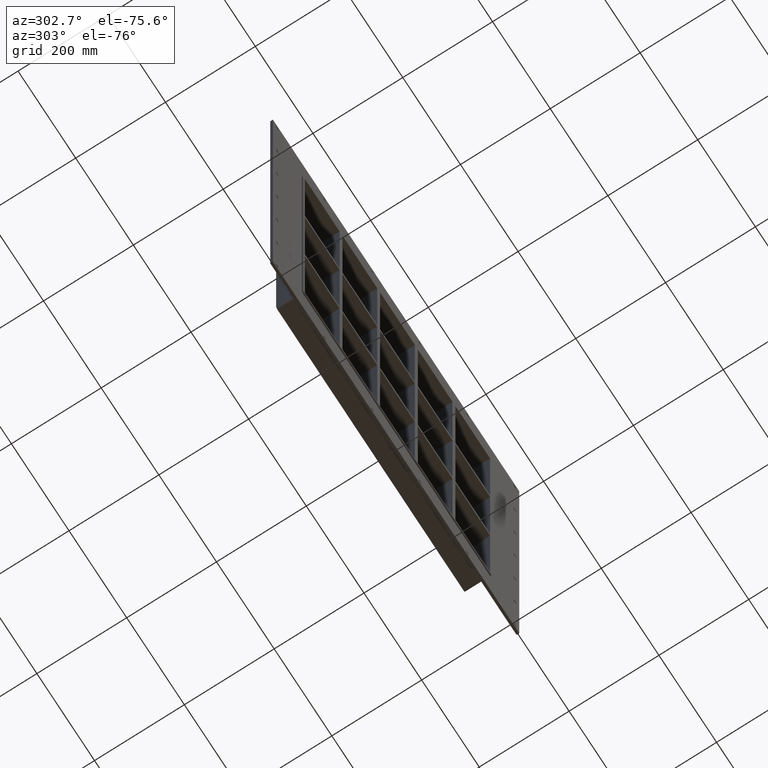
[diagram: clean part render]
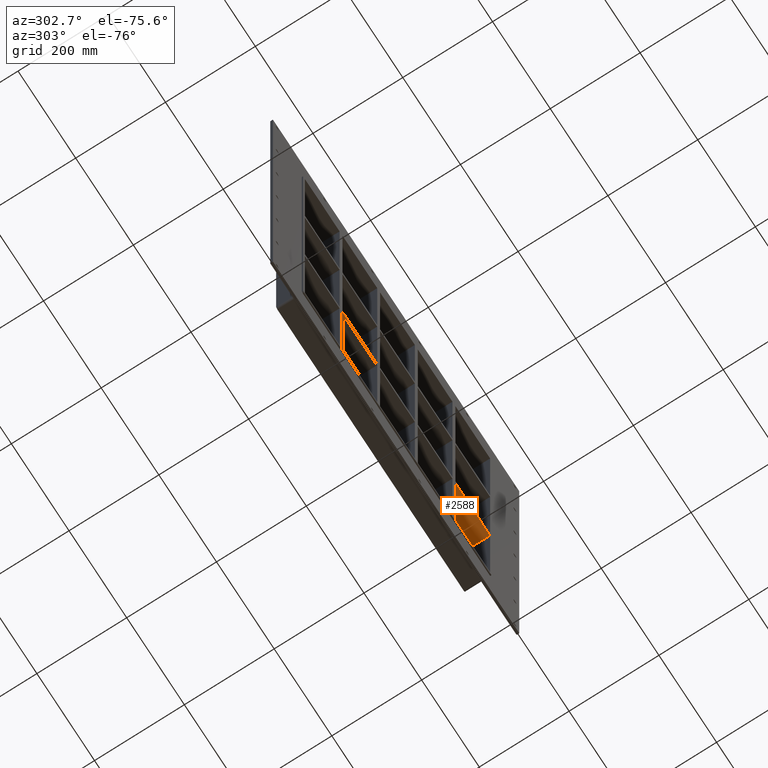
[diagram: same view with one face highlighted and labeled with its STEP entity id]
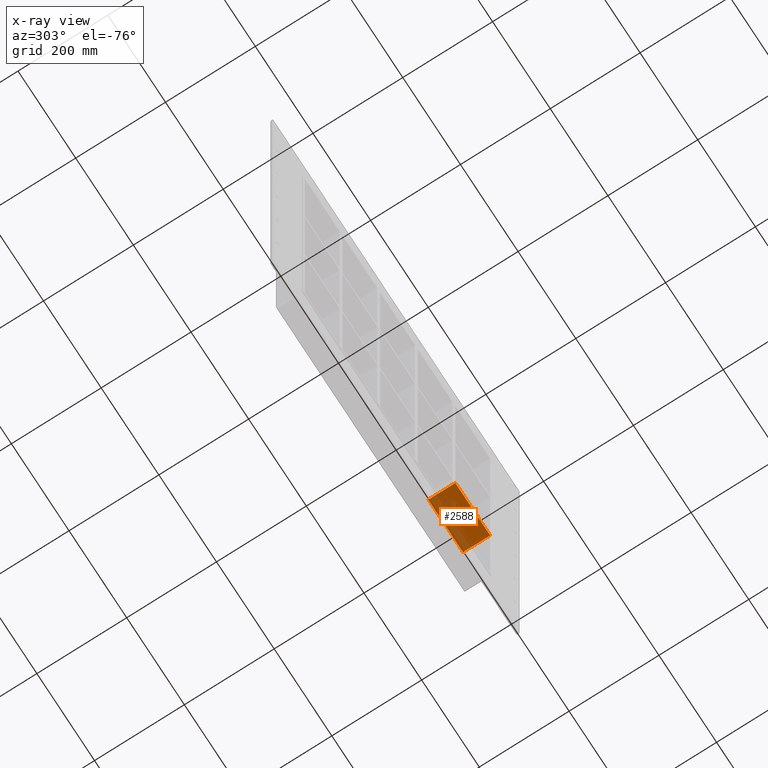
[diagram: x-ray of the same camera — body ghosted, the highlighted face saturated]
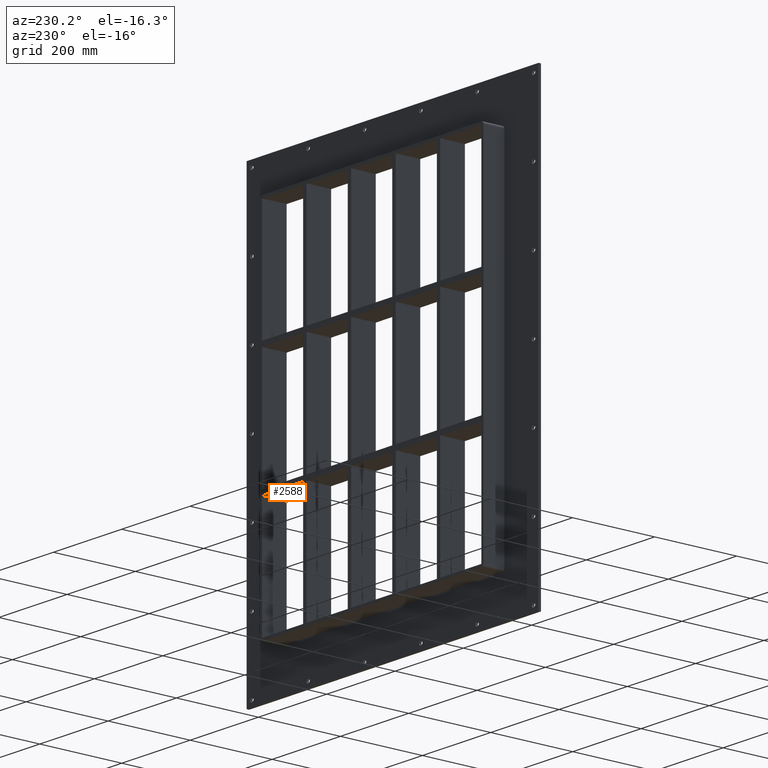
[diagram: same view with one face highlighted and labeled with its STEP entity id]
A machine part, auxiliary view. The second image highlights one B-rep face of the part: STEP entity #2588.
The next image is the same camera in x-ray: the body ghosted, the highlighted face saturated — about 42% of this face is hidden behind the body in this view.
A second angle (auxiliary view) of the same face is appended — the face is thin or edge-on in the first view.
In plain terms, the highlighted planar face has unit normal (0, 0, -1).
Its self-contained STEP definition (entity closure, byte-faithful):
#1843=CARTESIAN_POINT('',(321.25000000000006,57.0,-151.00000000000929));
#1844=VERTEX_POINT('',#1843);
#1851=CARTESIAN_POINT('',(200.74999999999278,57.0,-151.00000000000932));
#1852=VERTEX_POINT('',#1851);
#1853=CARTESIAN_POINT('',(321.25,57.0,-151.00000000000929));
#1854=DIRECTION('',(-1.0,0.0,0.0));
#1855=VECTOR('',#1854,120.50000000000722);
#1856=LINE('',#1853,#1855);
#1857=EDGE_CURVE('',#1844,#1852,#1856,.T.);
#1952=CARTESIAN_POINT('',(200.74999999999278,-3.0,-151.00000000000932));
#1953=VERTEX_POINT('',#1952);
#1954=CARTESIAN_POINT('',(200.74999999999278,-3.0,-151.00000000000929));
#1955=DIRECTION('',(0.0,1.0,0.0));
#1956=VECTOR('',#1955,60.0);
#1957=LINE('',#1954,#1956);
#1958=EDGE_CURVE('',#1953,#1852,#1957,.T.);
#2520=CARTESIAN_POINT('',(321.25,-3.0,-151.00000000000929));
#2521=VERTEX_POINT('',#2520);
#2522=CARTESIAN_POINT('',(321.25,-3.0,-151.00000000000929));
#2523=DIRECTION('',(-1.0,0.0,0.0));
#2524=VECTOR('',#2523,120.50000000000722);
#2525=LINE('',#2522,#2524);
#2526=EDGE_CURVE('',#2521,#1953,#2525,.T.);
#2572=CARTESIAN_POINT('',(321.25,-3.0,-151.00000000000929));
#2573=DIRECTION('',(0.0,0.0,-1.0));
#2574=DIRECTION('',(-1.0,0.0,0.0));
#2575=AXIS2_PLACEMENT_3D('',#2572,#2573,#2574);
#2576=PLANE('',#2575);
#2577=ORIENTED_EDGE('',*,*,#1958,.T.);
#2578=ORIENTED_EDGE('',*,*,#1857,.F.);
#2579=CARTESIAN_POINT('',(321.25000000000006,-3.0,-151.00000000000929));
#2580=DIRECTION('',(0.0,1.0,0.0));
#2581=VECTOR('',#2580,60.000000000000007);
#2582=LINE('',#2579,#2581);
#2583=EDGE_CURVE('',#2521,#1844,#2582,.T.);
#2584=ORIENTED_EDGE('',*,*,#2583,.F.);
#2585=ORIENTED_EDGE('',*,*,#2526,.T.);
#2586=EDGE_LOOP('',(#2577,#2578,#2584,#2585));
#2587=FACE_OUTER_BOUND('',#2586,.T.);
#2588=ADVANCED_FACE('',(#2587),#2576,.T.);